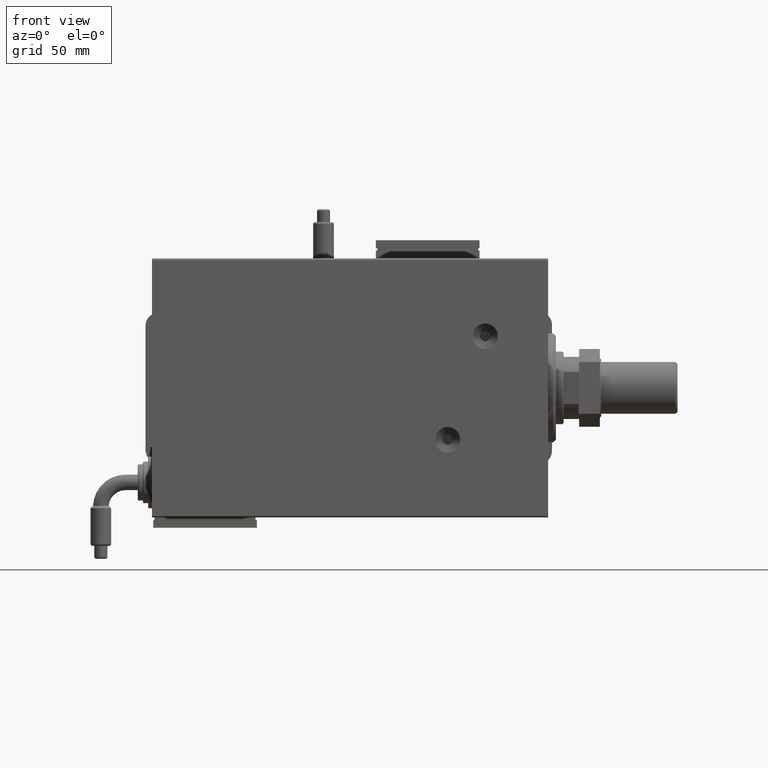
[diagram: clean part render]
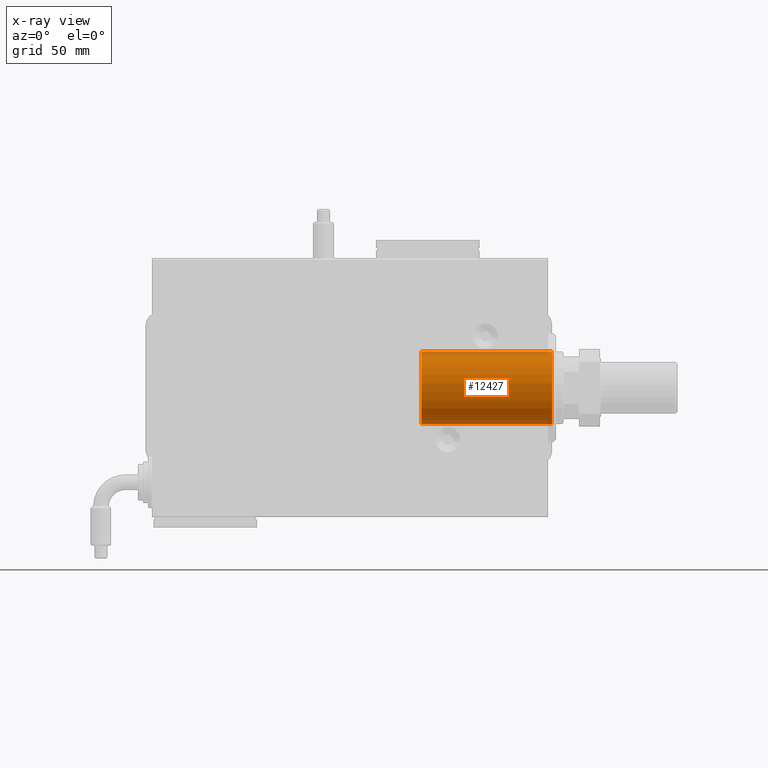
[diagram: x-ray — body ghosted, one internal face saturated and labeled with its STEP entity id]
A machine part, front view, then the same camera in x-ray: the body is ghosted and one INTERNAL B-rep face — a face not visible from any outside direction — is saturated and labeled: STEP entity #12427.
In plain terms, the highlighted cylindrical surface (edge-blend (fillet) strip) has radius 14 mm, axis along (1, 0, 0).
Its self-contained STEP definition (entity closure, byte-faithful):
#483 = LINE ( 'NONE', #54138, #20860 ) ;
#3999 = DIRECTION ( 'NONE',  ( 1.000000000000000000, -0.000000000000000000, -0.000000000000000000 ) ) ;
#6842 = EDGE_CURVE ( 'NONE', #51473, #58657, #46239, .T. ) ;
#11941 = DIRECTION ( 'NONE',  ( 0.000000000000000000, 0.000000000000000000, -1.000000000000000000 ) ) ;
#12427 = ADVANCED_FACE ( 'NONE', ( #18793 ), #19423, .F. ) ;
#12805 = CARTESIAN_POINT ( 'NONE',  ( -48.99999999999999289, 0.000000000000000000, -14.00000000000000000 ) ) ;
#17073 = CARTESIAN_POINT ( 'NONE',  ( 1.500000000000001332, 0.000000000000000000, -14.00000000000000000 ) ) ;
#17658 = CARTESIAN_POINT ( 'NONE',  ( -48.99999999999999289, 0.000000000000000000, -14.00000000000000000 ) ) ;
#18567 = AXIS2_PLACEMENT_3D ( 'NONE', #33071, #38776, #43547 ) ;
#18657 = CARTESIAN_POINT ( 'NONE',  ( 1.500000000000001332, 0.000000000000000000, 0.000000000000000000 ) ) ;
#18793 = FACE_OUTER_BOUND ( 'NONE', #61127, .T. ) ;
#19329 = EDGE_CURVE ( 'NONE', #48831, #35486, #483, .T. ) ;
#19423 = CYLINDRICAL_SURFACE ( 'NONE', #18567, 14.00000000000000000 ) ;
#20860 = VECTOR ( 'NONE', #53819, 1000.000000000000000 ) ;
#24485 = EDGE_CURVE ( 'NONE', #35486, #58657, #34126, .T. ) ;
#28766 = ORIENTED_EDGE ( 'NONE', *, *, #19329, .T. ) ;
#31313 = CARTESIAN_POINT ( 'NONE',  ( 1.500000000000001332, 1.714505518806294244E-15, 14.00000000000000000 ) ) ;
#33071 = CARTESIAN_POINT ( 'NONE',  ( -48.99999999999999289, 0.000000000000000000, 0.000000000000000000 ) ) ;
#34126 = CIRCLE ( 'NONE', #41254, 14.00000000000000000 ) ;
#35486 = VERTEX_POINT ( 'NONE', #31313 ) ;
#35736 = DIRECTION ( 'NONE',  ( 1.000000000000000000, 0.000000000000000000, 0.000000000000000000 ) ) ;
#38014 = DIRECTION ( 'NONE',  ( 0.000000000000000000, 0.000000000000000000, -1.000000000000000000 ) ) ;
#38776 = DIRECTION ( 'NONE',  ( 1.000000000000000000, -0.000000000000000000, -0.000000000000000000 ) ) ;
#40646 = EDGE_CURVE ( 'NONE', #48831, #51473, #54638, .T. ) ;
#41254 = AXIS2_PLACEMENT_3D ( 'NONE', #18657, #42153, #38014 ) ;
#42153 = DIRECTION ( 'NONE',  ( 1.000000000000000000, 0.000000000000000000, 0.000000000000000000 ) ) ;
#43478 = AXIS2_PLACEMENT_3D ( 'NONE', #45889, #35736, #11941 ) ;
#43547 = DIRECTION ( 'NONE',  ( 0.000000000000000000, 0.000000000000000000, -1.000000000000000000 ) ) ;
#45889 = CARTESIAN_POINT ( 'NONE',  ( -48.99999999999999289, 0.000000000000000000, 0.000000000000000000 ) ) ;
#46239 = LINE ( 'NONE', #17658, #51984 ) ;
#48831 = VERTEX_POINT ( 'NONE', #58421 ) ;
#49544 = ORIENTED_EDGE ( 'NONE', *, *, #24485, .T. ) ;
#51473 = VERTEX_POINT ( 'NONE', #12805 ) ;
#51984 = VECTOR ( 'NONE', #3999, 1000.000000000000000 ) ;
#52716 = ORIENTED_EDGE ( 'NONE', *, *, #6842, .F. ) ;
#53819 = DIRECTION ( 'NONE',  ( 1.000000000000000000, -0.000000000000000000, -0.000000000000000000 ) ) ;
#54138 = CARTESIAN_POINT ( 'NONE',  ( -48.99999999999999289, 1.714505518806294244E-15, 14.00000000000000000 ) ) ;
#54638 = CIRCLE ( 'NONE', #43478, 14.00000000000000000 ) ;
#58421 = CARTESIAN_POINT ( 'NONE',  ( -48.99999999999999289, 1.714505518806294244E-15, 14.00000000000000000 ) ) ;
#58657 = VERTEX_POINT ( 'NONE', #17073 ) ;
#61007 = ORIENTED_EDGE ( 'NONE', *, *, #40646, .F. ) ;
#61127 = EDGE_LOOP ( 'NONE', ( #61007, #28766, #49544, #52716 ) ) ;